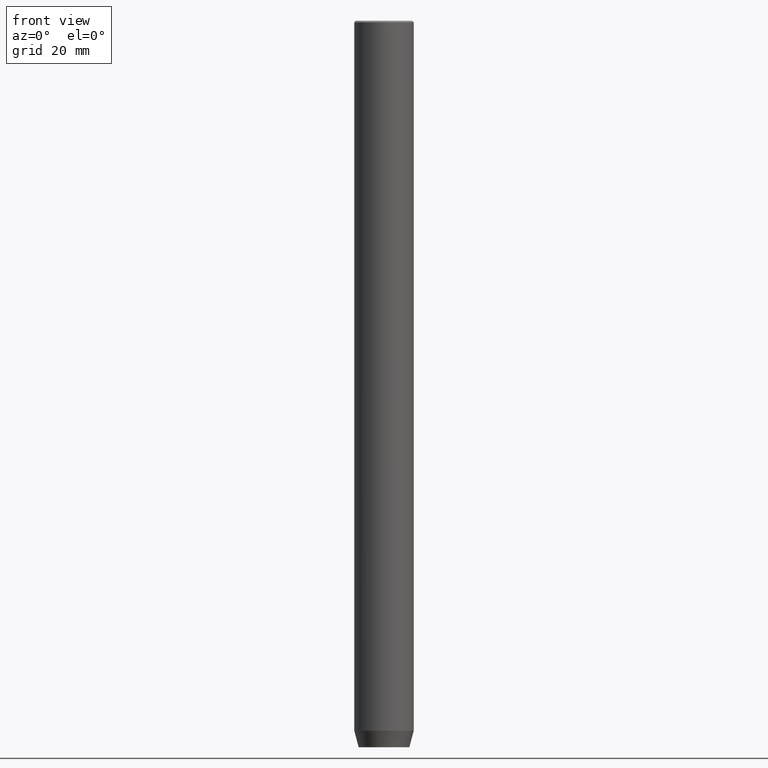
[diagram: clean part render]
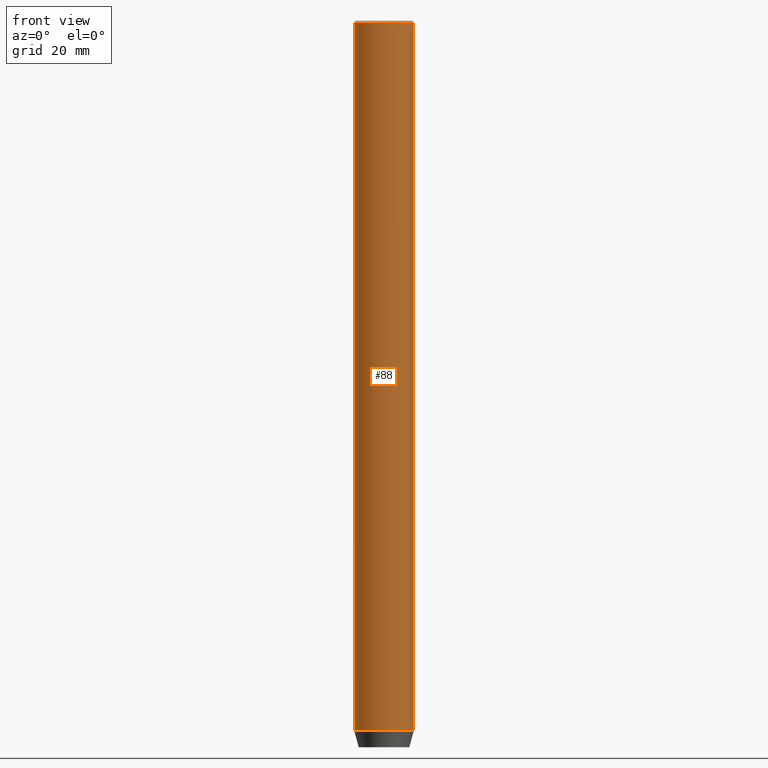
[diagram: same view with one face highlighted and labeled with its STEP entity id]
A machine part, front view. The second image highlights one B-rep face of the part: STEP entity #88.
In plain terms, the highlighted cylindrical surface (edge-blend (fillet) strip) has radius 9 mm, axis along (-0, -0, 1).
Its self-contained STEP definition (entity closure, byte-faithful):
#5 = VECTOR ( 'NONE', #581, 1000.000000000000000 ) ;
#32 = EDGE_CURVE ( 'NONE', #49, #452, #492, .T. ) ;
#41 = VECTOR ( 'NONE', #265, 1000.000000000000000 ) ;
#49 = VERTEX_POINT ( 'NONE', #182 ) ;
#59 = DIRECTION ( 'NONE',  ( 1.000000000000000000, 0.000000000000000000, 0.000000000000000000 ) ) ;
#86 = EDGE_CURVE ( 'NONE', #49, #498, #127, .T. ) ;
#88 = ADVANCED_FACE ( 'NONE', ( #231 ), #407, .T. ) ;
#97 = DIRECTION ( 'NONE',  ( 0.000000000000000000, 0.000000000000000000, -1.000000000000000000 ) ) ;
#127 = CIRCLE ( 'NONE', #455, 9.000000000000000000 ) ;
#134 = CARTESIAN_POINT ( 'NONE',  ( -9.000000000000000000, 1.102182119232617714E-15, -0.4999999999999952260 ) ) ;
#138 = AXIS2_PLACEMENT_3D ( 'NONE', #532, #97, #477 ) ;
#145 = ORIENTED_EDGE ( 'NONE', *, *, #86, .T. ) ;
#178 = ORIENTED_EDGE ( 'NONE', *, *, #32, .F. ) ;
#182 = CARTESIAN_POINT ( 'NONE',  ( -9.000000000000000000, 1.102182119232617714E-15, -214.9999999999999716 ) ) ;
#209 = CARTESIAN_POINT ( 'NONE',  ( 9.000000000000000000, 0.000000000000000000, -0.4999999999999952260 ) ) ;
#218 = CIRCLE ( 'NONE', #138, 9.000000000000000000 ) ;
#231 = FACE_OUTER_BOUND ( 'NONE', #561, .T. ) ;
#265 = DIRECTION ( 'NONE',  ( -0.000000000000000000, -0.000000000000000000, 1.000000000000000000 ) ) ;
#272 = DIRECTION ( 'NONE',  ( -0.000000000000000000, -0.000000000000000000, 1.000000000000000000 ) ) ;
#284 = DIRECTION ( 'NONE',  ( 1.000000000000000000, 0.000000000000000000, 0.000000000000000000 ) ) ;
#324 = ORIENTED_EDGE ( 'NONE', *, *, #529, .T. ) ;
#342 = CARTESIAN_POINT ( 'NONE',  ( 9.000000000000000000, 0.000000000000000000, 0.000000000000000000 ) ) ;
#349 = CARTESIAN_POINT ( 'NONE',  ( -9.000000000000000000, 1.102182119232617714E-15, 0.000000000000000000 ) ) ;
#351 = VERTEX_POINT ( 'NONE', #209 ) ;
#407 = CYLINDRICAL_SURFACE ( 'NONE', #571, 9.000000000000000000 ) ;
#415 = DIRECTION ( 'NONE',  ( -0.000000000000000000, -0.000000000000000000, 1.000000000000000000 ) ) ;
#439 = LINE ( 'NONE', #342, #41 ) ;
#452 = VERTEX_POINT ( 'NONE', #134 ) ;
#455 = AXIS2_PLACEMENT_3D ( 'NONE', #506, #272, #59 ) ;
#458 = CARTESIAN_POINT ( 'NONE',  ( 0.000000000000000000, 0.000000000000000000, 0.000000000000000000 ) ) ;
#465 = EDGE_CURVE ( 'NONE', #351, #452, #218, .T. ) ;
#475 = CARTESIAN_POINT ( 'NONE',  ( 9.000000000000000000, 0.000000000000000000, -214.9999999999999716 ) ) ;
#477 = DIRECTION ( 'NONE',  ( 1.000000000000000000, 0.000000000000000000, 0.000000000000000000 ) ) ;
#492 = LINE ( 'NONE', #349, #5 ) ;
#498 = VERTEX_POINT ( 'NONE', #475 ) ;
#502 = ORIENTED_EDGE ( 'NONE', *, *, #465, .T. ) ;
#506 = CARTESIAN_POINT ( 'NONE',  ( 0.000000000000000000, 0.000000000000000000, -214.9999999999999716 ) ) ;
#529 = EDGE_CURVE ( 'NONE', #498, #351, #439, .T. ) ;
#532 = CARTESIAN_POINT ( 'NONE',  ( 0.000000000000000000, 0.000000000000000000, -0.4999999999999952260 ) ) ;
#561 = EDGE_LOOP ( 'NONE', ( #178, #145, #324, #502 ) ) ;
#571 = AXIS2_PLACEMENT_3D ( 'NONE', #458, #415, #284 ) ;
#581 = DIRECTION ( 'NONE',  ( -0.000000000000000000, -0.000000000000000000, 1.000000000000000000 ) ) ;